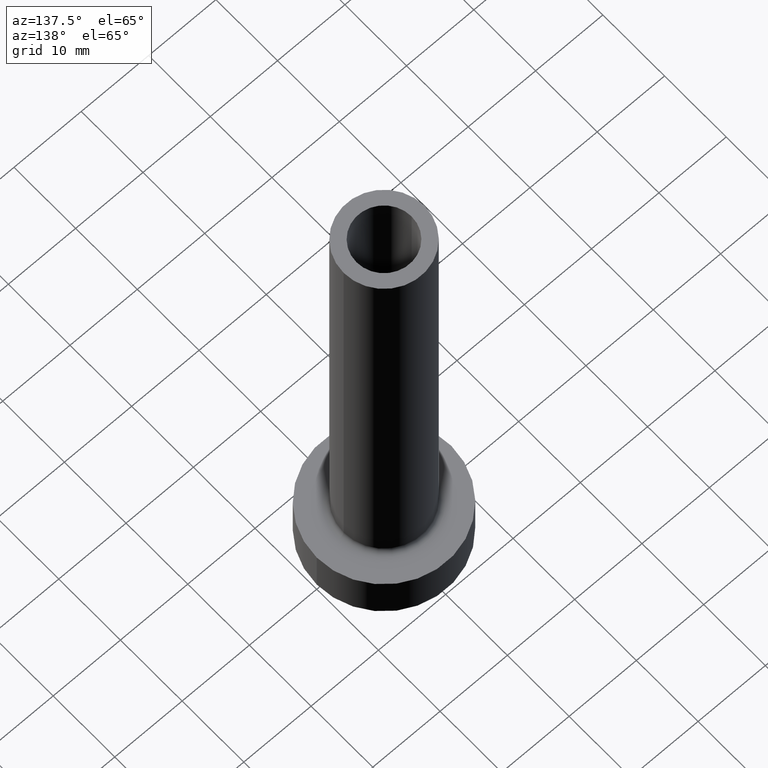
[diagram: clean part render]
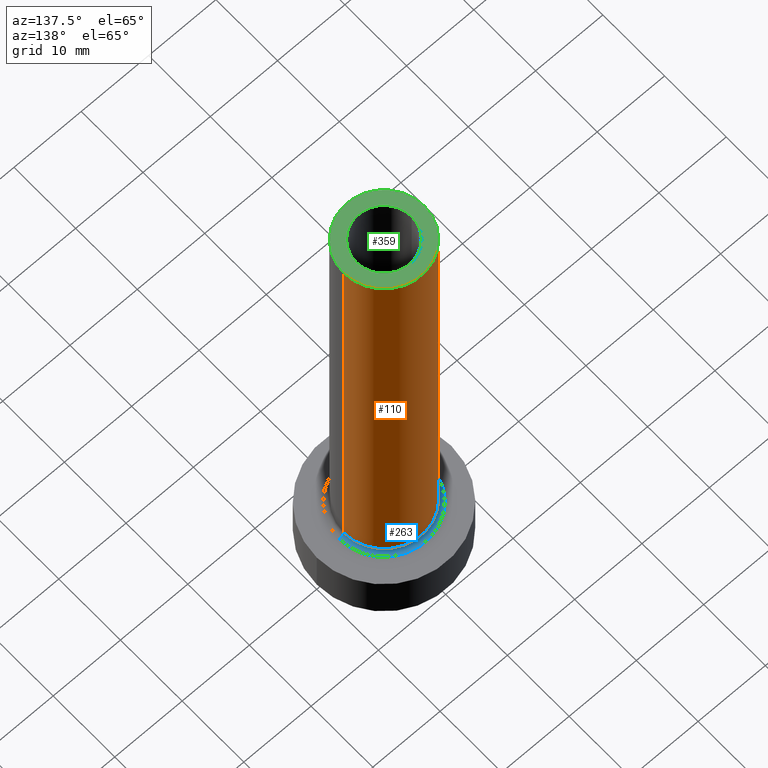
[diagram: same view with three faces highlighted in distinct colors, each labeled with its STEP entity id]
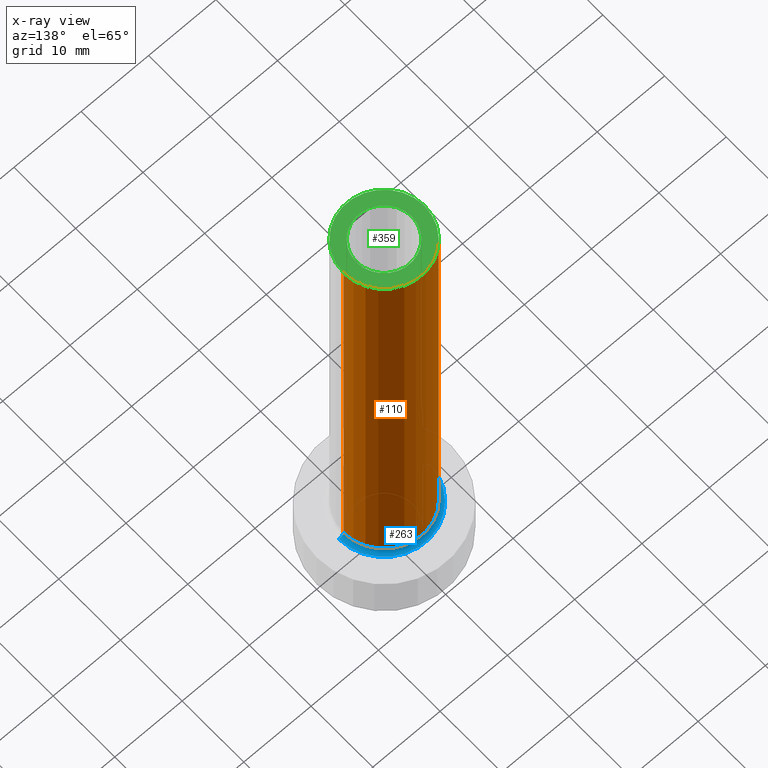
[diagram: x-ray of the same camera — body ghosted, the three highlighted faces saturated]
A machine part, auxiliary view with three faces highlighted in distinct colors.
The next image is the same camera in x-ray (body ghosted, the three faces saturated) — at least one of them is partly hidden behind the body in this view.
Their STEP definitions:

[orange] entity #110 — the highlighted cylindrical surface (partial cylindrical patch) has radius 6 mm, axis along (-0, -0, -1).
#3 = CARTESIAN_POINT ( 'NONE',  ( 6.000000000000000888, 7.347880794884120722E-16, 75.00000000000001421 ) ) ;
#6 = CARTESIAN_POINT ( 'NONE',  ( 0.000000000000000000, 0.000000000000000000, 7.699999999999998401 ) ) ;
#17 = VERTEX_POINT ( 'NONE', #142 ) ;
#21 = EDGE_CURVE ( 'NONE', #234, #129, #282, .T. ) ;
#36 = DIRECTION ( 'NONE',  ( 0.000000000000000000, 0.000000000000000000, 1.000000000000000000 ) ) ;
#41 = VERTEX_POINT ( 'NONE', #106 ) ;
#51 = DIRECTION ( 'NONE',  ( -0.000000000000000000, -0.000000000000000000, -1.000000000000000000 ) ) ;
#64 = CIRCLE ( 'NONE', #308, 6.000000000000000888 ) ;
#81 = LINE ( 'NONE', #296, #121 ) ;
#82 = DIRECTION ( 'NONE',  ( -1.000000000000000000, 0.000000000000000000, 0.000000000000000000 ) ) ;
#85 = VECTOR ( 'NONE', #186, 1000.000000000000000 ) ;
#92 = EDGE_LOOP ( 'NONE', ( #424, #166, #135, #387 ) ) ;
#106 = CARTESIAN_POINT ( 'NONE',  ( -6.000000000000000888, 0.000000000000000000, 75.00000000000001421 ) ) ;
#110 = ADVANCED_FACE ( 'NONE', ( #364 ), #292, .T. ) ;
#121 = VECTOR ( 'NONE', #123, 1000.000000000000000 ) ;
#123 = DIRECTION ( 'NONE',  ( -0.000000000000000000, -0.000000000000000000, -1.000000000000000000 ) ) ;
#129 = VERTEX_POINT ( 'NONE', #200 ) ;
#135 = ORIENTED_EDGE ( 'NONE', *, *, #302, .T. ) ;
#137 = CIRCLE ( 'NONE', #458, 6.000000000000000888 ) ;
#142 = CARTESIAN_POINT ( 'NONE',  ( -6.000000000000000888, 0.000000000000000000, 7.699999999999998401 ) ) ;
#166 = ORIENTED_EDGE ( 'NONE', *, *, #21, .T. ) ;
#186 = DIRECTION ( 'NONE',  ( -0.000000000000000000, -0.000000000000000000, -1.000000000000000000 ) ) ;
#200 = CARTESIAN_POINT ( 'NONE',  ( 6.000000000000000888, 7.347880794884120722E-16, 7.699999999999998401 ) ) ;
#216 = EDGE_CURVE ( 'NONE', #234, #41, #137, .T. ) ;
#234 = VERTEX_POINT ( 'NONE', #344 ) ;
#282 = LINE ( 'NONE', #3, #85 ) ;
#292 = CYLINDRICAL_SURFACE ( 'NONE', #336, 6.000000000000000888 ) ;
#296 = CARTESIAN_POINT ( 'NONE',  ( -6.000000000000000888, 0.000000000000000000, 75.00000000000001421 ) ) ;
#299 = CARTESIAN_POINT ( 'NONE',  ( 0.000000000000000000, 0.000000000000000000, 75.00000000000001421 ) ) ;
#302 = EDGE_CURVE ( 'NONE', #129, #17, #64, .T. ) ;
#308 = AXIS2_PLACEMENT_3D ( 'NONE', #6, #36, #324 ) ;
#324 = DIRECTION ( 'NONE',  ( 1.000000000000000000, 0.000000000000000000, 0.000000000000000000 ) ) ;
#336 = AXIS2_PLACEMENT_3D ( 'NONE', #362, #51, #82 ) ;
#344 = CARTESIAN_POINT ( 'NONE',  ( 6.000000000000000888, 7.347880794884120722E-16, 75.00000000000001421 ) ) ;
#362 = CARTESIAN_POINT ( 'NONE',  ( 0.000000000000000000, 0.000000000000000000, 75.00000000000001421 ) ) ;
#364 = FACE_OUTER_BOUND ( 'NONE', #92, .T. ) ;
#387 = ORIENTED_EDGE ( 'NONE', *, *, #448, .F. ) ;
#413 = DIRECTION ( 'NONE',  ( 1.000000000000000000, 0.000000000000000000, 0.000000000000000000 ) ) ;
#424 = ORIENTED_EDGE ( 'NONE', *, *, #216, .F. ) ;
#441 = DIRECTION ( 'NONE',  ( 0.000000000000000000, 0.000000000000000000, 1.000000000000000000 ) ) ;
#448 = EDGE_CURVE ( 'NONE', #41, #17, #81, .T. ) ;
#458 = AXIS2_PLACEMENT_3D ( 'NONE', #299, #441, #413 ) ;

[blue] entity #263 — the highlighted toroidal blend (fillet) surface has major radius 6.7 mm and minor (blend) radius 0.7 mm.
#6 = CARTESIAN_POINT ( 'NONE',  ( 0.000000000000000000, 0.000000000000000000, 7.699999999999998401 ) ) ;
#12 = CARTESIAN_POINT ( 'NONE',  ( 0.000000000000000000, 0.000000000000000000, 7.699999999999998401 ) ) ;
#17 = VERTEX_POINT ( 'NONE', #142 ) ;
#36 = DIRECTION ( 'NONE',  ( 0.000000000000000000, 0.000000000000000000, 1.000000000000000000 ) ) ;
#44 = CARTESIAN_POINT ( 'NONE',  ( 6.700000000000001066, 0.000000000000000000, 6.999999999999999112 ) ) ;
#57 = CIRCLE ( 'NONE', #159, 0.7000000000000000666 ) ;
#64 = CIRCLE ( 'NONE', #308, 6.000000000000000888 ) ;
#66 = VERTEX_POINT ( 'NONE', #44 ) ;
#112 = ORIENTED_EDGE ( 'NONE', *, *, #140, .T. ) ;
#124 = CARTESIAN_POINT ( 'NONE',  ( 0.000000000000000000, 0.000000000000000000, 7.000000000000000000 ) ) ;
#127 = AXIS2_PLACEMENT_3D ( 'NONE', #124, #265, #444 ) ;
#129 = VERTEX_POINT ( 'NONE', #200 ) ;
#140 = EDGE_CURVE ( 'NONE', #129, #66, #57, .T. ) ;
#141 = FACE_OUTER_BOUND ( 'NONE', #321, .T. ) ;
#142 = CARTESIAN_POINT ( 'NONE',  ( -6.000000000000000888, 0.000000000000000000, 7.699999999999998401 ) ) ;
#150 = EDGE_CURVE ( 'NONE', #404, #66, #322, .T. ) ;
#156 = DIRECTION ( 'NONE',  ( 0.000000000000000000, -1.000000000000000000, 0.000000000000000000 ) ) ;
#159 = AXIS2_PLACEMENT_3D ( 'NONE', #432, #156, #301 ) ;
#160 = CARTESIAN_POINT ( 'NONE',  ( -6.700000000000001066, 8.205133554287267548E-16, 6.999999999999999112 ) ) ;
#169 = AXIS2_PLACEMENT_3D ( 'NONE', #219, #384, #179 ) ;
#175 = ORIENTED_EDGE ( 'NONE', *, *, #318, .F. ) ;
#179 = DIRECTION ( 'NONE',  ( -1.000000000000000000, 1.224646799147353454E-16, 0.000000000000000000 ) ) ;
#200 = CARTESIAN_POINT ( 'NONE',  ( 6.000000000000000888, 7.347880794884120722E-16, 7.699999999999998401 ) ) ;
#204 = CIRCLE ( 'NONE', #169, 0.7000000000000000666 ) ;
#219 = CARTESIAN_POINT ( 'NONE',  ( -6.700000000000001066, 8.205133554287267548E-16, 7.699999999999998401 ) ) ;
#231 = AXIS2_PLACEMENT_3D ( 'NONE', #12, #422, #354 ) ;
#263 = ADVANCED_FACE ( 'NONE', ( #141 ), #447, .F. ) ;
#265 = DIRECTION ( 'NONE',  ( -0.000000000000000000, -0.000000000000000000, -1.000000000000000000 ) ) ;
#301 = DIRECTION ( 'NONE',  ( 0.000000000000000000, 0.000000000000000000, -1.000000000000000000 ) ) ;
#302 = EDGE_CURVE ( 'NONE', #129, #17, #64, .T. ) ;
#308 = AXIS2_PLACEMENT_3D ( 'NONE', #6, #36, #324 ) ;
#318 = EDGE_CURVE ( 'NONE', #17, #404, #204, .T. ) ;
#321 = EDGE_LOOP ( 'NONE', ( #175, #375, #112, #461 ) ) ;
#322 = CIRCLE ( 'NONE', #127, 6.700000000000001066 ) ;
#324 = DIRECTION ( 'NONE',  ( 1.000000000000000000, 0.000000000000000000, 0.000000000000000000 ) ) ;
#354 = DIRECTION ( 'NONE',  ( 1.000000000000000000, 0.000000000000000000, 0.000000000000000000 ) ) ;
#375 = ORIENTED_EDGE ( 'NONE', *, *, #302, .F. ) ;
#384 = DIRECTION ( 'NONE',  ( 1.224646799147353207E-16, 1.000000000000000000, -0.000000000000000000 ) ) ;
#404 = VERTEX_POINT ( 'NONE', #160 ) ;
#422 = DIRECTION ( 'NONE',  ( 0.000000000000000000, 0.000000000000000000, 1.000000000000000000 ) ) ;
#432 = CARTESIAN_POINT ( 'NONE',  ( 6.700000000000001066, 0.000000000000000000, 7.699999999999998401 ) ) ;
#444 = DIRECTION ( 'NONE',  ( 1.000000000000000000, 0.000000000000000000, 0.000000000000000000 ) ) ;
#447 = TOROIDAL_SURFACE ( 'NONE', #231, 6.700000000000001066, 0.6999999999999999556 ) ;
#461 = ORIENTED_EDGE ( 'NONE', *, *, #150, .F. ) ;

[green] entity #359 — the highlighted planar face has unit normal (0, 0, 1).
#19 = DIRECTION ( 'NONE',  ( 0.000000000000000000, 0.000000000000000000, 1.000000000000000000 ) ) ;
#22 = CARTESIAN_POINT ( 'NONE',  ( -4.099999999999999645, 0.000000000000000000, 75.00000000000001421 ) ) ;
#35 = ORIENTED_EDGE ( 'NONE', *, *, #80, .T. ) ;
#38 = ORIENTED_EDGE ( 'NONE', *, *, #216, .T. ) ;
#41 = VERTEX_POINT ( 'NONE', #106 ) ;
#46 = CARTESIAN_POINT ( 'NONE',  ( 0.000000000000000000, 0.000000000000000000, 75.00000000000001421 ) ) ;
#47 = DIRECTION ( 'NONE',  ( 1.000000000000000000, 0.000000000000000000, 0.000000000000000000 ) ) ;
#77 = DIRECTION ( 'NONE',  ( 0.000000000000000000, 0.000000000000000000, 1.000000000000000000 ) ) ;
#80 = EDGE_CURVE ( 'NONE', #41, #234, #348, .T. ) ;
#84 = DIRECTION ( 'NONE',  ( 0.000000000000000000, 0.000000000000000000, 1.000000000000000000 ) ) ;
#96 = AXIS2_PLACEMENT_3D ( 'NONE', #46, #77, #120 ) ;
#101 = CARTESIAN_POINT ( 'NONE',  ( 0.000000000000000000, 0.000000000000000000, 75.00000000000001421 ) ) ;
#106 = CARTESIAN_POINT ( 'NONE',  ( -6.000000000000000888, 0.000000000000000000, 75.00000000000001421 ) ) ;
#107 = FACE_BOUND ( 'NONE', #457, .T. ) ;
#109 = AXIS2_PLACEMENT_3D ( 'NONE', #153, #84, #47 ) ;
#120 = DIRECTION ( 'NONE',  ( 1.000000000000000000, 0.000000000000000000, 0.000000000000000000 ) ) ;
#131 = EDGE_CURVE ( 'NONE', #180, #174, #297, .T. ) ;
#137 = CIRCLE ( 'NONE', #458, 6.000000000000000888 ) ;
#153 = CARTESIAN_POINT ( 'NONE',  ( 0.000000000000000000, 0.000000000000000000, 75.00000000000001421 ) ) ;
#174 = VERTEX_POINT ( 'NONE', #22 ) ;
#180 = VERTEX_POINT ( 'NONE', #357 ) ;
#190 = EDGE_CURVE ( 'NONE', #174, #180, #412, .T. ) ;
#216 = EDGE_CURVE ( 'NONE', #234, #41, #137, .T. ) ;
#234 = VERTEX_POINT ( 'NONE', #344 ) ;
#244 = DIRECTION ( 'NONE',  ( 1.000000000000000000, 0.000000000000000000, -0.000000000000000000 ) ) ;
#253 = PLANE ( 'NONE',  #323 ) ;
#277 = AXIS2_PLACEMENT_3D ( 'NONE', #358, #19, #436 ) ;
#297 = CIRCLE ( 'NONE', #96, 4.099999999999999645 ) ;
#299 = CARTESIAN_POINT ( 'NONE',  ( 0.000000000000000000, 0.000000000000000000, 75.00000000000001421 ) ) ;
#320 = DIRECTION ( 'NONE',  ( 0.000000000000000000, 0.000000000000000000, 1.000000000000000000 ) ) ;
#323 = AXIS2_PLACEMENT_3D ( 'NONE', #101, #320, #244 ) ;
#344 = CARTESIAN_POINT ( 'NONE',  ( 6.000000000000000888, 7.347880794884120722E-16, 75.00000000000001421 ) ) ;
#345 = ORIENTED_EDGE ( 'NONE', *, *, #190, .F. ) ;
#348 = CIRCLE ( 'NONE', #109, 6.000000000000000888 ) ;
#353 = FACE_OUTER_BOUND ( 'NONE', #426, .T. ) ;
#357 = CARTESIAN_POINT ( 'NONE',  ( 4.099999999999999645, 5.021051876504146399E-16, 75.00000000000001421 ) ) ;
#358 = CARTESIAN_POINT ( 'NONE',  ( 0.000000000000000000, 0.000000000000000000, 75.00000000000001421 ) ) ;
#359 = ADVANCED_FACE ( 'NONE', ( #107, #353 ), #253, .T. ) ;
#412 = CIRCLE ( 'NONE', #277, 4.099999999999999645 ) ;
#413 = DIRECTION ( 'NONE',  ( 1.000000000000000000, 0.000000000000000000, 0.000000000000000000 ) ) ;
#426 = EDGE_LOOP ( 'NONE', ( #35, #38 ) ) ;
#436 = DIRECTION ( 'NONE',  ( 1.000000000000000000, 0.000000000000000000, 0.000000000000000000 ) ) ;
#441 = DIRECTION ( 'NONE',  ( 0.000000000000000000, 0.000000000000000000, 1.000000000000000000 ) ) ;
#456 = ORIENTED_EDGE ( 'NONE', *, *, #131, .F. ) ;
#457 = EDGE_LOOP ( 'NONE', ( #345, #456 ) ) ;
#458 = AXIS2_PLACEMENT_3D ( 'NONE', #299, #441, #413 ) ;